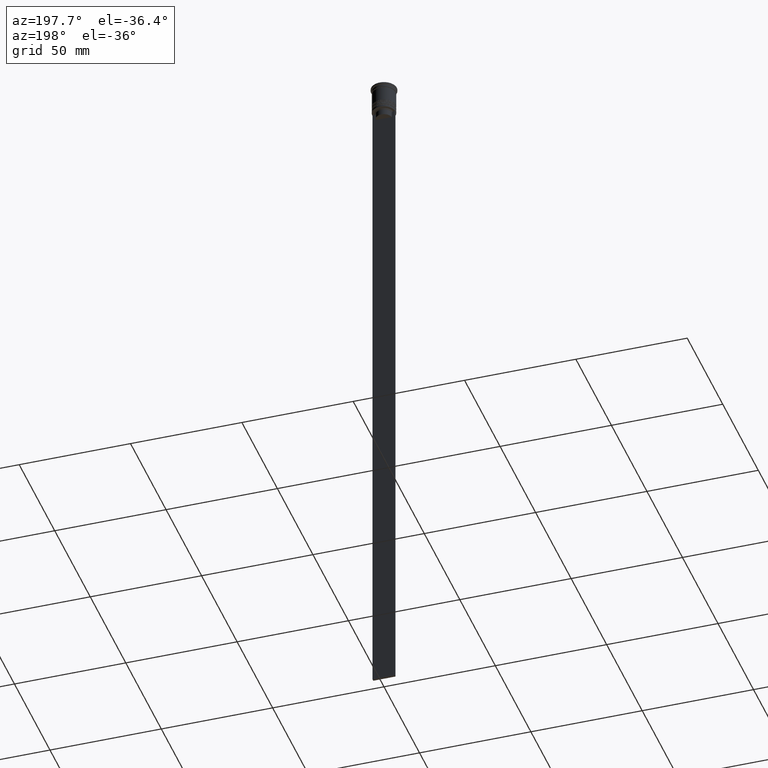
[diagram: clean part render]
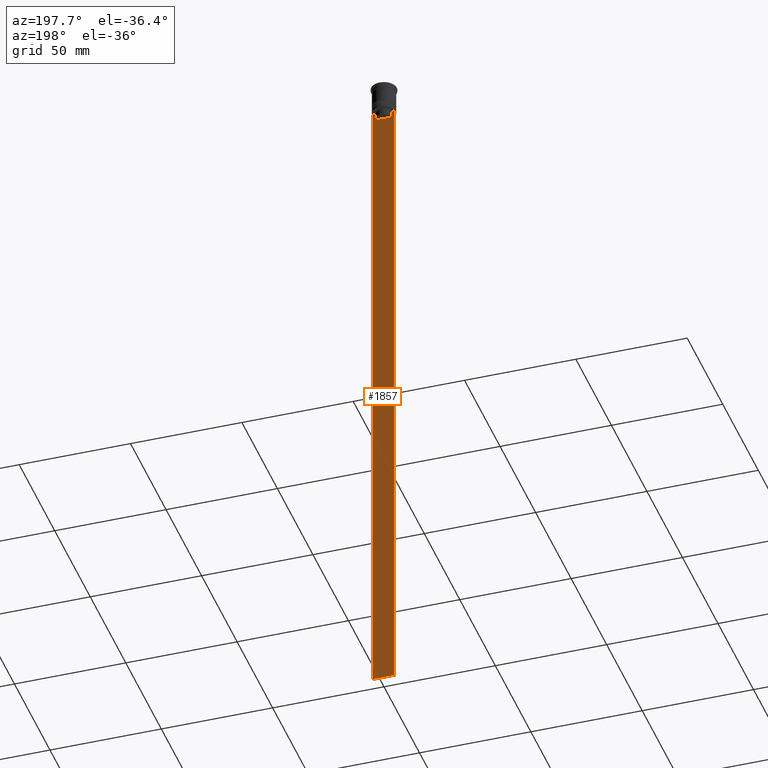
[diagram: same view with one face highlighted and labeled with its STEP entity id]
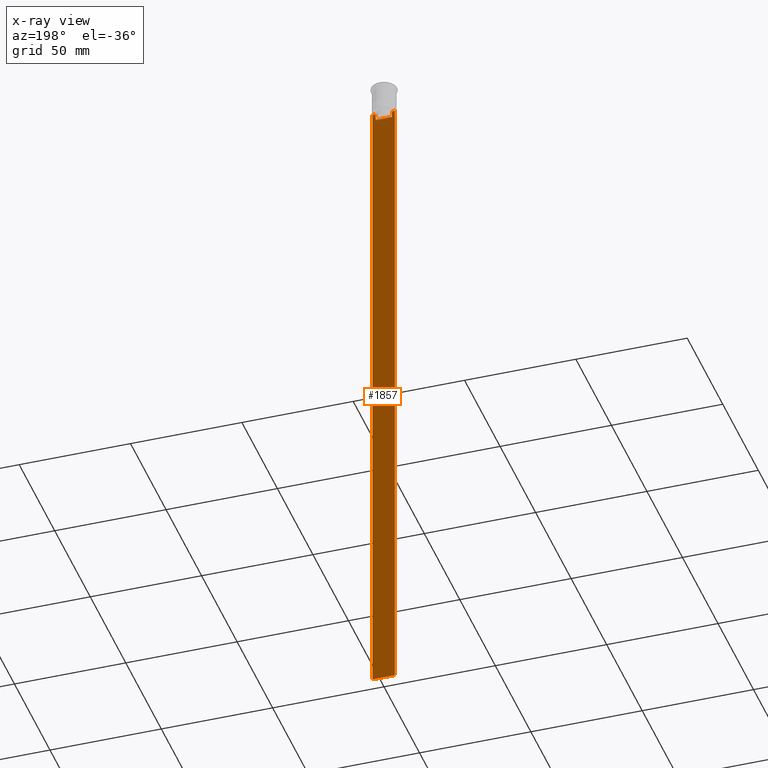
[diagram: x-ray of the same camera — body ghosted, the highlighted face saturated]
A machine part, auxiliary view. The second image highlights one B-rep face of the part: STEP entity #1857.
The next image is the same camera in x-ray: the body ghosted, the highlighted face saturated — about 0% of this face is hidden behind the body in this view.
In plain terms, the highlighted planar face has unit normal (0, -1, -0).
Its self-contained STEP definition (entity closure, byte-faithful):
#18 = CARTESIAN_POINT ( 'NONE',  ( -4.999999999999999112, 0.4999999999999991673, -2.450124378879110054 ) ) ;
#42 = ORIENTED_EDGE ( 'NONE', *, *, #1560, .T. ) ;
#114 = ORIENTED_EDGE ( 'NONE', *, *, #528, .T. ) ;
#121 = CARTESIAN_POINT ( 'NONE',  ( -3.615591237958188042, 0.4999999999999991673, 0.000000000000000000 ) ) ;
#171 = CARTESIAN_POINT ( 'NONE',  ( 3.783746406711540722, 0.4999999999999991673, -12.83343003979123509 ) ) ;
#172 = CARTESIAN_POINT ( 'NONE',  ( 5.000000000000000000, 0.4999999999999991673, -312.5000000000000000 ) ) ;
#185 = CARTESIAN_POINT ( 'NONE',  ( -4.119769411022908834, 0.4999999999999991673, -12.50000000000000000 ) ) ;
#193 = DIRECTION ( 'NONE',  ( 0.000000000000000000, 0.000000000000000000, -1.000000000000000000 ) ) ;
#244 = VECTOR ( 'NONE', #1282, 1000.000000000000000 ) ;
#289 = B_SPLINE_CURVE_WITH_KNOTS ( 'NONE', 3,
 ( #2309, #171, #871, #1596 ),
 .UNSPECIFIED., .F., .F.,
 ( 4, 4 ),
 ( 0.01745179617248911533, 0.01816207215777259493 ),
 .UNSPECIFIED. ) ;
#292 = VERTEX_POINT ( 'NONE', #997 ) ;
#341 = EDGE_CURVE ( 'NONE', #1929, #1315, #1639, .T. ) ;
#343 = CARTESIAN_POINT ( 'NONE',  ( 3.615591237958188042, 0.4999999999999991673, 0.000000000000000000 ) ) ;
#385 = VECTOR ( 'NONE', #1076, 1000.000000000000000 ) ;
#413 = DIRECTION ( 'NONE',  ( 1.000000000000000000, 0.000000000000000000, 0.000000000000000000 ) ) ;
#507 = EDGE_LOOP ( 'NONE', ( #114, #2224, #1017, #728, #642, #2102, #42, #1449, #1386, #1674 ) ) ;
#528 = EDGE_CURVE ( 'NONE', #610, #1487, #1853, .T. ) ;
#575 = CARTESIAN_POINT ( 'NONE',  ( 5.000000000000000000, 0.4999999999999991673, -12.50000000000000000 ) ) ;
#610 = VERTEX_POINT ( 'NONE', #2186 ) ;
#620 = VECTOR ( 'NONE', #193, 1000.000000000000000 ) ;
#642 = ORIENTED_EDGE ( 'NONE', *, *, #2077, .T. ) ;
#656 = DIRECTION ( 'NONE',  ( 0.000000000000000000, -1.000000000000000000, -0.000000000000000000 ) ) ;
#694 = B_SPLINE_CURVE_WITH_KNOTS ( 'NONE', 3,
 ( #2168, #2332, #1099, #1469 ),
 .UNSPECIFIED., .F., .F.,
 ( 4, 4 ),
 ( 0.007067514914986626831, 0.007777582239375527978 ),
 .UNSPECIFIED. ) ;
#728 = ORIENTED_EDGE ( 'NONE', *, *, #341, .T. ) ;
#754 = LINE ( 'NONE', #575, #1006 ) ;
#795 = CARTESIAN_POINT ( 'NONE',  ( 5.000000000000000000, 0.4999999999999991673, -312.5000000000000000 ) ) ;
#807 = VERTEX_POINT ( 'NONE', #1559 ) ;
#817 = VECTOR ( 'NONE', #413, 1000.000000000000000 ) ;
#828 = EDGE_CURVE ( 'NONE', #996, #292, #1291, .T. ) ;
#846 = CARTESIAN_POINT ( 'NONE',  ( 4.119769411022908834, 0.4999999999999991673, -12.50000000000000000 ) ) ;
#849 = DIRECTION ( 'NONE',  ( 0.000000000000000000, 0.000000000000000000, -1.000000000000000000 ) ) ;
#871 = CARTESIAN_POINT ( 'NONE',  ( 3.951794168112527927, 0.4999999999999991673, -12.66675163073525923 ) ) ;
#890 = CARTESIAN_POINT ( 'NONE',  ( 0.000000000000000000, 0.4999999999999991673, -15.50000000000000000 ) ) ;
#950 = VECTOR ( 'NONE', #1589, 1000.000000000000000 ) ;
#952 = VERTEX_POINT ( 'NONE', #1788 ) ;
#960 = EDGE_CURVE ( 'NONE', #1487, #2256, #694, .T. ) ;
#992 = EDGE_CURVE ( 'NONE', #952, #996, #1977, .T. ) ;
#996 = VERTEX_POINT ( 'NONE', #172 ) ;
#997 = CARTESIAN_POINT ( 'NONE',  ( -4.999999999999999112, 0.4999999999999991673, -312.5000000000000000 ) ) ;
#1006 = VECTOR ( 'NONE', #1811, 1000.000000000000000 ) ;
#1017 = ORIENTED_EDGE ( 'NONE', *, *, #1959, .T. ) ;
#1076 = DIRECTION ( 'NONE',  ( -0.000000000000000000, -0.000000000000000000, 1.000000000000000000 ) ) ;
#1099 = CARTESIAN_POINT ( 'NONE',  ( -3.783746449387932920, 0.4999999999999991673, -12.83342999751715752 ) ) ;
#1244 = VECTOR ( 'NONE', #1800, 1000.000000000000000 ) ;
#1282 = DIRECTION ( 'NONE',  ( 1.000000000000000000, 0.000000000000000000, 0.000000000000000000 ) ) ;
#1283 = LINE ( 'NONE', #18, #620 ) ;
#1291 = LINE ( 'NONE', #795, #1727 ) ;
#1304 = CARTESIAN_POINT ( 'NONE',  ( 5.000000000000000000, 0.4999999999999991673, -12.50000000000000000 ) ) ;
#1315 = VERTEX_POINT ( 'NONE', #1779 ) ;
#1386 = ORIENTED_EDGE ( 'NONE', *, *, #828, .T. ) ;
#1429 = EDGE_CURVE ( 'NONE', #807, #2303, #289, .T. ) ;
#1435 = LINE ( 'NONE', #343, #385 ) ;
#1445 = CARTESIAN_POINT ( 'NONE',  ( 5.000000000000000000, 0.4999999999999991673, -2.450124378879110054 ) ) ;
#1449 = ORIENTED_EDGE ( 'NONE', *, *, #992, .T. ) ;
#1469 = CARTESIAN_POINT ( 'NONE',  ( -3.615591237958188042, 0.4999999999999991673, -13.00000000000000178 ) ) ;
#1487 = VERTEX_POINT ( 'NONE', #185 ) ;
#1559 = CARTESIAN_POINT ( 'NONE',  ( 3.615591237958188042, 0.4999999999999991673, -13.00000000000000178 ) ) ;
#1560 = EDGE_CURVE ( 'NONE', #2303, #952, #754, .T. ) ;
#1575 = PLANE ( 'NONE',  #1833 ) ;
#1589 = DIRECTION ( 'NONE',  ( 0.000000000000000000, 0.000000000000000000, -1.000000000000000000 ) ) ;
#1596 = CARTESIAN_POINT ( 'NONE',  ( 4.119769411022908834, 0.4999999999999991673, -12.50000000000000000 ) ) ;
#1639 = LINE ( 'NONE', #890, #244 ) ;
#1673 = EDGE_CURVE ( 'NONE', #610, #292, #1283, .T. ) ;
#1674 = ORIENTED_EDGE ( 'NONE', *, *, #1673, .F. ) ;
#1727 = VECTOR ( 'NONE', #2003, 1000.000000000000000 ) ;
#1734 = CARTESIAN_POINT ( 'NONE',  ( -3.615591237958188486, 0.4999999999999991673, -15.50000000000000000 ) ) ;
#1755 = FACE_OUTER_BOUND ( 'NONE', #507, .T. ) ;
#1779 = CARTESIAN_POINT ( 'NONE',  ( 3.615591237958188486, 0.4999999999999991673, -15.50000000000000000 ) ) ;
#1788 = CARTESIAN_POINT ( 'NONE',  ( 5.000000000000000000, 0.4999999999999991673, -12.50000000000000000 ) ) ;
#1800 = DIRECTION ( 'NONE',  ( 0.000000000000000000, 0.000000000000000000, -1.000000000000000000 ) ) ;
#1811 = DIRECTION ( 'NONE',  ( 1.000000000000000000, 0.000000000000000000, 0.000000000000000000 ) ) ;
#1833 = AXIS2_PLACEMENT_3D ( 'NONE', #1944, #656, #849 ) ;
#1853 = LINE ( 'NONE', #1304, #817 ) ;
#1857 = ADVANCED_FACE ( 'NONE', ( #1755 ), #1575, .F. ) ;
#1929 = VERTEX_POINT ( 'NONE', #1734 ) ;
#1944 = CARTESIAN_POINT ( 'NONE',  ( 5.000000000000000000, 0.4999999999999991673, -2.450124378879110054 ) ) ;
#1959 = EDGE_CURVE ( 'NONE', #2256, #1929, #2098, .T. ) ;
#1977 = LINE ( 'NONE', #1445, #1244 ) ;
#2003 = DIRECTION ( 'NONE',  ( -1.000000000000000000, 0.000000000000000000, 0.000000000000000000 ) ) ;
#2059 = CARTESIAN_POINT ( 'NONE',  ( -3.615591237958188042, 0.4999999999999991673, -13.00000000000000178 ) ) ;
#2077 = EDGE_CURVE ( 'NONE', #1315, #807, #1435, .T. ) ;
#2098 = LINE ( 'NONE', #121, #950 ) ;
#2102 = ORIENTED_EDGE ( 'NONE', *, *, #1429, .T. ) ;
#2168 = CARTESIAN_POINT ( 'NONE',  ( -4.119769411022908834, 0.4999999999999991673, -12.50000000000000000 ) ) ;
#2186 = CARTESIAN_POINT ( 'NONE',  ( -4.999999999999999112, 0.4999999999999993339, -12.50000000000000000 ) ) ;
#2224 = ORIENTED_EDGE ( 'NONE', *, *, #960, .T. ) ;
#2256 = VERTEX_POINT ( 'NONE', #2059 ) ;
#2303 = VERTEX_POINT ( 'NONE', #846 ) ;
#2309 = CARTESIAN_POINT ( 'NONE',  ( 3.615591237958188042, 0.4999999999999991673, -13.00000000000000178 ) ) ;
#2332 = CARTESIAN_POINT ( 'NONE',  ( -3.951794205566887985, 0.4999999999999991673, -12.66675159355373737 ) ) ;